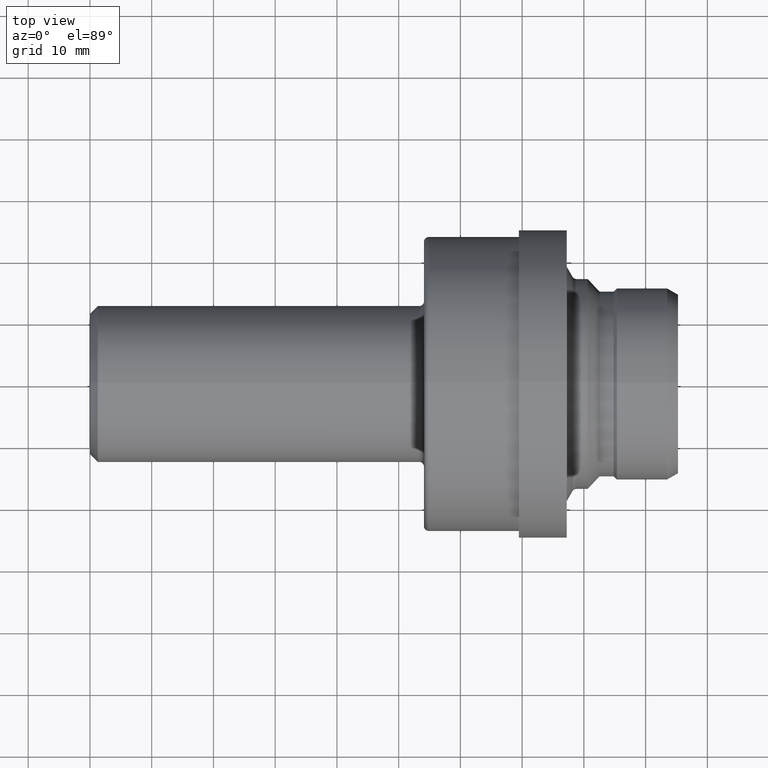
[diagram: clean part render]
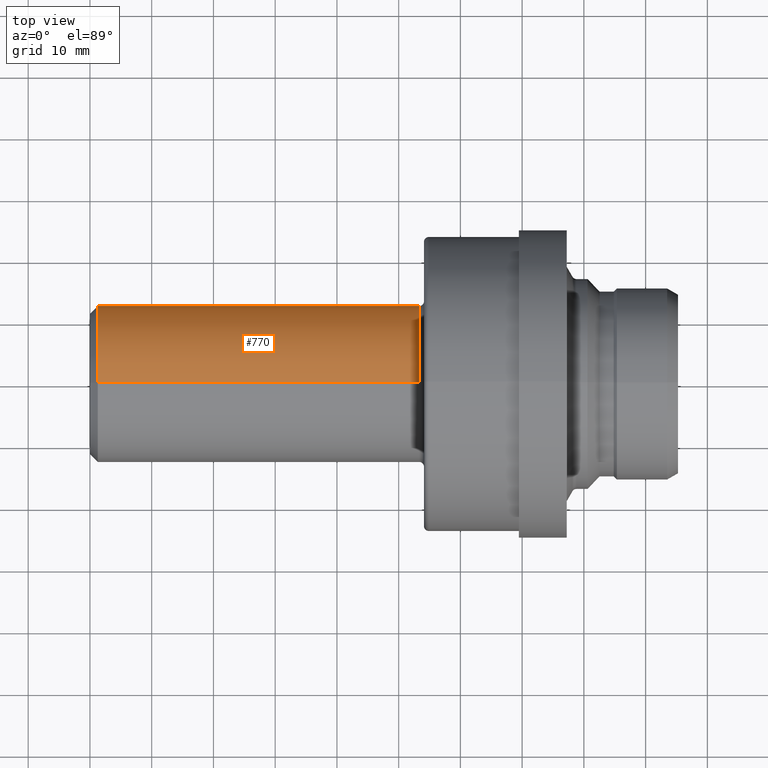
[diagram: same view with one face highlighted and labeled with its STEP entity id]
A machine part, top view. The second image highlights one B-rep face of the part: STEP entity #770.
In plain terms, the highlighted cylindrical surface (partial cylindrical patch) has radius 12.6962 mm, axis along (-1, -0, -0).
Its self-contained STEP definition (entity closure, byte-faithful):
#3 = CARTESIAN_POINT ( 'NONE',  ( 2.100000000000000089, 6.305094045410148139E-17, -0.4998500000000000165 ) ) ;
#35 = EDGE_LOOP ( 'NONE', ( #739, #253, #45, #107 ) ) ;
#37 = DIRECTION ( 'NONE',  ( 0.0000000000000000000, 0.0000000000000000000, 1.000000000000000000 ) ) ;
#40 = LINE ( 'NONE', #535, #417 ) ;
#45 = ORIENTED_EDGE ( 'NONE', *, *, #727, .F. ) ;
#46 = CARTESIAN_POINT ( 'NONE',  ( 2.100000000000000089, 0.0000000000000000000, 0.0000000000000000000 ) ) ;
#48 = DIRECTION ( 'NONE',  ( -1.000000000000000000, -0.0000000000000000000, -0.0000000000000000000 ) ) ;
#50 = LINE ( 'NONE', #222, #815 ) ;
#107 = ORIENTED_EDGE ( 'NONE', *, *, #692, .F. ) ;
#115 = VERTEX_POINT ( 'NONE', #545 ) ;
#135 = DIRECTION ( 'NONE',  ( 0.0000000000000000000, 0.0000000000000000000, 1.000000000000000000 ) ) ;
#157 = DIRECTION ( 'NONE',  ( -1.000000000000000000, -0.0000000000000000000, -0.0000000000000000000 ) ) ;
#222 = CARTESIAN_POINT ( 'NONE',  ( 0.0000000000000000000, 0.0000000000000000000, 0.4998500000000000165 ) ) ;
#253 = ORIENTED_EDGE ( 'NONE', *, *, #508, .T. ) ;
#261 = CIRCLE ( 'NONE', #773, 0.4998500000000000165 ) ;
#268 = CARTESIAN_POINT ( 'NONE',  ( 0.0000000000000000000, 0.0000000000000000000, 0.0000000000000000000 ) ) ;
#417 = VECTOR ( 'NONE', #522, 39.37007874015748143 ) ;
#425 = VERTEX_POINT ( 'NONE', #575 ) ;
#441 = CYLINDRICAL_SURFACE ( 'NONE', #895, 0.4998500000000000165 ) ;
#466 = VERTEX_POINT ( 'NONE', #536 ) ;
#483 = CIRCLE ( 'NONE', #655, 0.4998500000000000165 ) ;
#484 = DIRECTION ( 'NONE',  ( 0.0000000000000000000, 0.0000000000000000000, 1.000000000000000000 ) ) ;
#497 = DIRECTION ( 'NONE',  ( -1.000000000000000000, -0.0000000000000000000, -0.0000000000000000000 ) ) ;
#508 = EDGE_CURVE ( 'NONE', #661, #466, #40, .T. ) ;
#522 = DIRECTION ( 'NONE',  ( -1.000000000000000000, -0.0000000000000000000, -0.0000000000000000000 ) ) ;
#535 = CARTESIAN_POINT ( 'NONE',  ( 0.0000000000000000000, 6.121397025538045565E-17, -0.4998500000000000165 ) ) ;
#536 = CARTESIAN_POINT ( 'NONE',  ( 0.05000000000000000278, 6.121397025538045565E-17, -0.4998500000000000165 ) ) ;
#545 = CARTESIAN_POINT ( 'NONE',  ( 0.05000000000000000278, 0.0000000000000000000, 0.4998500000000000165 ) ) ;
#562 = DIRECTION ( 'NONE',  ( -1.000000000000000000, -0.0000000000000000000, -0.0000000000000000000 ) ) ;
#575 = CARTESIAN_POINT ( 'NONE',  ( 2.100000000000000089, 0.0000000000000000000, 0.4998500000000000165 ) ) ;
#655 = AXIS2_PLACEMENT_3D ( 'NONE', #705, #157, #135 ) ;
#661 = VERTEX_POINT ( 'NONE', #3 ) ;
#692 = EDGE_CURVE ( 'NONE', #425, #115, #50, .T. ) ;
#705 = CARTESIAN_POINT ( 'NONE',  ( 0.05000000000000000278, 0.0000000000000000000, 0.0000000000000000000 ) ) ;
#727 = EDGE_CURVE ( 'NONE', #115, #466, #483, .T. ) ;
#739 = ORIENTED_EDGE ( 'NONE', *, *, #785, .T. ) ;
#770 = ADVANCED_FACE ( 'NONE', ( #826 ), #441, .T. ) ;
#773 = AXIS2_PLACEMENT_3D ( 'NONE', #46, #48, #37 ) ;
#785 = EDGE_CURVE ( 'NONE', #425, #661, #261, .T. ) ;
#815 = VECTOR ( 'NONE', #497, 39.37007874015748143 ) ;
#826 = FACE_OUTER_BOUND ( 'NONE', #35, .T. ) ;
#895 = AXIS2_PLACEMENT_3D ( 'NONE', #268, #562, #484 ) ;